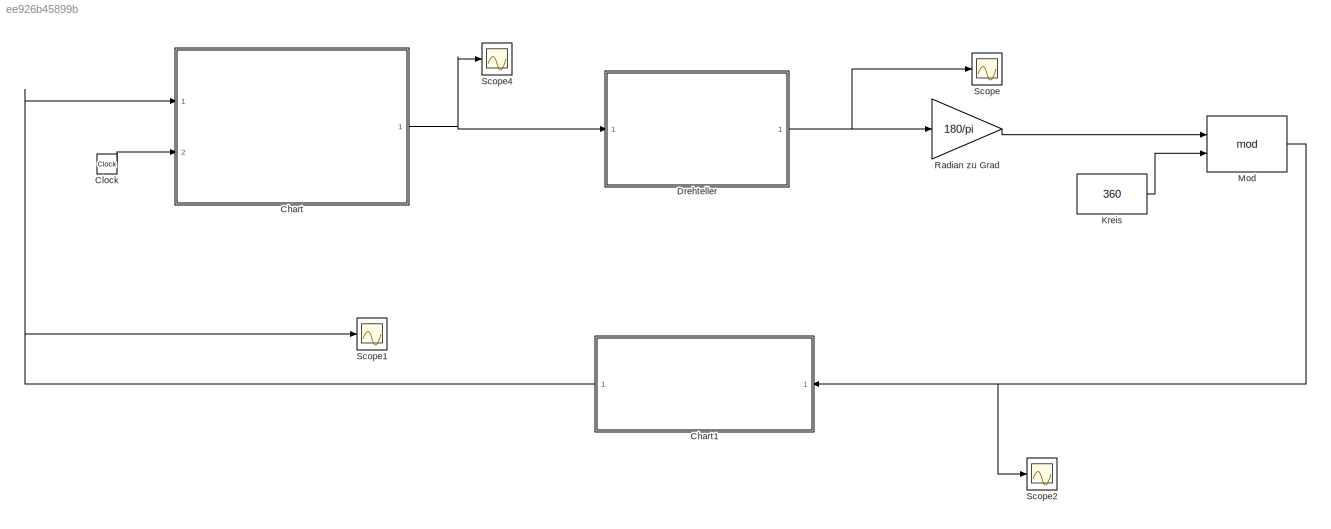
MODEL slx_ee926b45899b
KIND model
CONFIG AbsTol = auto
CONFIG EnableMultiTasking = off
CONFIG FixedStep = 0.01
CONFIG MaxStep = auto
CONFIG MinStep = auto
CONFIG RelTol = 1e-3
CONFIG SampleTimeConstraint = Unconstrained
CONFIG SolverName = ode3
CONFIG StartTime = 0.0
CONFIG StopTime = 10.0
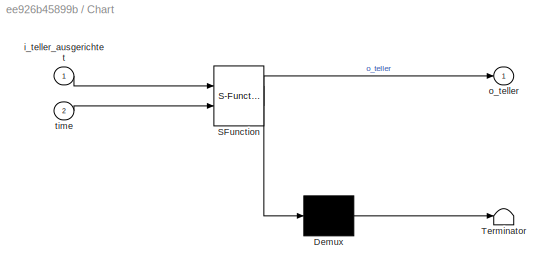
BLOCK [SubSystem] Chart
  ErrorFcn = Stateflow.Translate.translate
  PermitHierarchicalResolution = ExplicitOnly
  Ports = [2, 1]
  RequestExecContextInheritance = off
  SFBlockType = Chart
  TreatAsAtomicUnit = on
BLOCK [Demux] Chart/ Demux 
  Outputs = 1
  Ports = [1, 1]
BLOCK [S-Function] Chart/ SFunction 
  EnableBusSupport = on
  FunctionName = sf_sfun
  PortCounts = [2 2]
  Ports = [2, 2]
  SFcnIsStateOwnerBlock = off
  SFunctionDeploymentMode = off
  Tag = Stateflow S-Function 2
BLOCK [Terminator] Chart/ Terminator 
BLOCK [Inport] Chart/i_teller_ausgerichtet
BLOCK [Outport] Chart/o_teller
BLOCK [Inport] Chart/time
  Port = 2
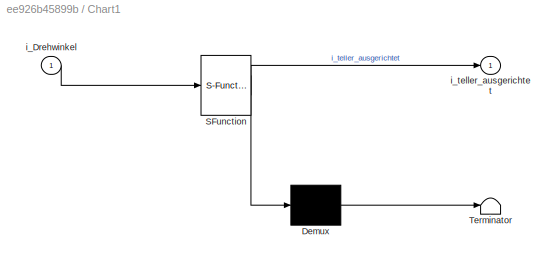
BLOCK [SubSystem] Chart1
  ErrorFcn = Stateflow.Translate.translate
  PermitHierarchicalResolution = ExplicitOnly
  Ports = [1, 1]
  RequestExecContextInheritance = off
  SFBlockType = Chart
  TreatAsAtomicUnit = on
BLOCK [Demux] Chart1/ Demux 
  Outputs = 1
  Ports = [1, 1]
BLOCK [S-Function] Chart1/ SFunction 
  EnableBusSupport = on
  FunctionName = sf_sfun
  PortCounts = [1 2]
  Ports = [1, 2]
  SFcnIsStateOwnerBlock = off
  SFunctionDeploymentMode = off
  Tag = Stateflow S-Function 1
BLOCK [Terminator] Chart1/ Terminator 
BLOCK [Inport] Chart1/i_Drehwinkel
BLOCK [Outport] Chart1/i_teller_ausgerichtet
BLOCK [Clock] Clock
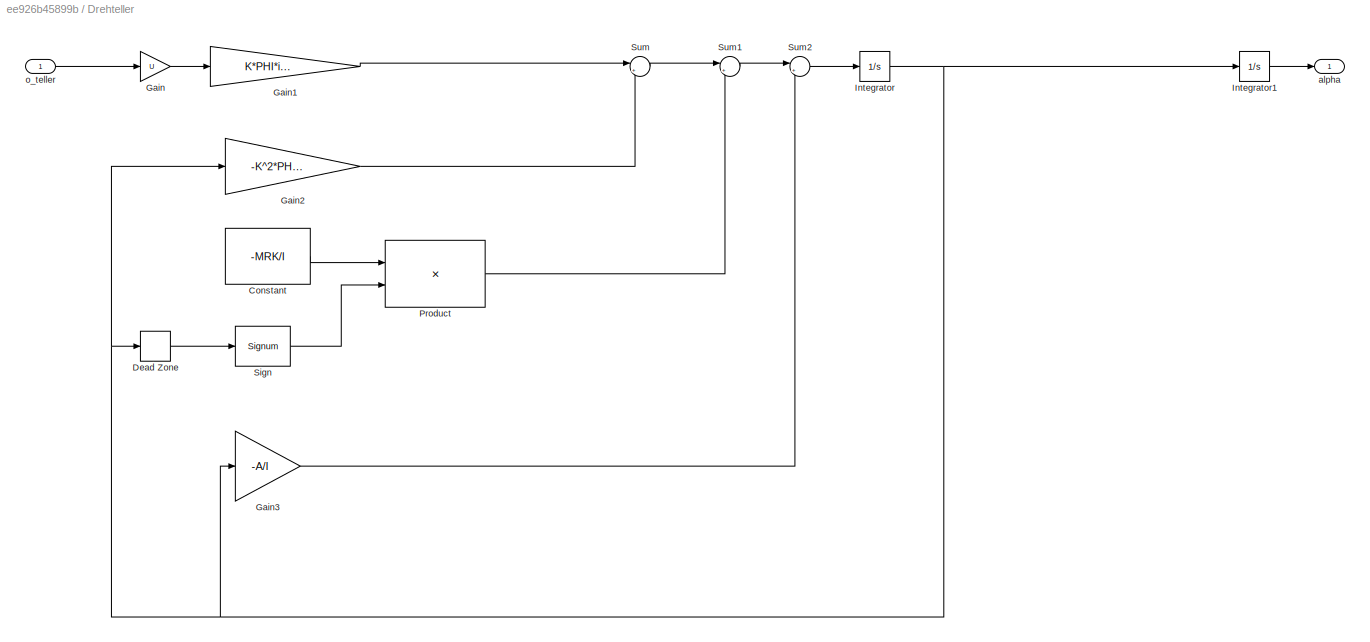
BLOCK [SubSystem] Drehteller
  Ports = [1, 1]
  RequestExecContextInheritance = off
BLOCK [Constant] Drehteller/Constant
  Value = -MRK/I
BLOCK [DeadZone] Drehteller/Dead Zone
BLOCK [Gain] Drehteller/Gain
  Gain = U
BLOCK [Gain] Drehteller/Gain1
  Gain = K*PHI*igetr/Ra/I
BLOCK [Gain] Drehteller/Gain2
  Gain = -K^2*PHI^2*igetr^2/Ra/I
BLOCK [Gain] Drehteller/Gain3
  Gain = -A/I
BLOCK [Integrator] Drehteller/Integrator
  Ports = [1, 1]
BLOCK [Integrator] Drehteller/Integrator1
  Ports = [1, 1]
BLOCK [Product] Drehteller/Product
  Ports = [2, 1]
BLOCK [Signum] Drehteller/Sign
BLOCK [Sum] Drehteller/Sum
  Inputs = |++
  NameLocation = top
  Ports = [2, 1]
BLOCK [Sum] Drehteller/Sum1
  Inputs = |++
  Ports = [2, 1]
BLOCK [Sum] Drehteller/Sum2
  Inputs = |++
  Ports = [2, 1]
BLOCK [Outport] Drehteller/alpha
  NameLocation = right
BLOCK [Inport] Drehteller/o_teller
BLOCK [Constant] Kreis
  Value = 360
BLOCK [Math] Mod
  Operator = mod
  Ports = [2, 1]
BLOCK [Gain] Radian zu Grad
  Gain = 180/pi
BLOCK [Scope] Scope
  Floating = off
  NumInputPorts = 1
  Ports = [1]
  ScopeSpecificationString = Simulink.scopes.TimeScopeBlockCfg('CurrentConfiguration', extmgr.ConfigurationSet(extmgr.Configuration('Core','General UI',true),extmgr.Configuration('Core','Source UI',true),extmgr.Configuration('Sources','WiredSimulink',true,'DataLoggingVariableName','ScopeData1'),extmgr.Configuration('Visuals','Time Domain',true,'SerializedDisplays',{struct('MinYLimReal','-0.39398','MaxYLimReal','3.54582','YLab...<+1369ch>
BLOCK [Scope] Scope1
  Floating = off
  NumInputPorts = 1
  Ports = [1]
  ScopeSpecificationString = Simulink.scopes.TimeScopeBlockCfg('CurrentConfiguration', extmgr.ConfigurationSet(extmgr.Configuration('Core','General UI',true),extmgr.Configuration('Core','Source UI',true),extmgr.Configuration('Sources','WiredSimulink',true,'DataLoggingVariableName','ScopeData2'),extmgr.Configuration('Visuals','Time Domain',true,'SerializedDisplays',{struct('MinYLimReal','-0.125','MaxYLimReal','1.125','YLabelRe...<+1429ch>
BLOCK [Scope] Scope2
  Floating = off
  NumInputPorts = 1
  Ports = [1]
  ScopeSpecificationString = Simulink.scopes.TimeScopeBlockCfg('CurrentConfiguration', extmgr.ConfigurationSet(extmgr.Configuration('Core','General UI',true),extmgr.Configuration('Core','Source UI',true),extmgr.Configuration('Sources','WiredSimulink',true),extmgr.Configuration('Visuals','Time Domain',true,'SerializedDisplays',{struct('MinYLimReal','-22.57342','MaxYLimReal','203.16074','YLabelReal','','MinYLimMag','0.00000','M...<+1409ch>
BLOCK [Scope] Scope4
  Floating = off
  NumInputPorts = 1
  Ports = [1]
  ScopeSpecificationString = Simulink.scopes.TimeScopeBlockCfg('CurrentConfiguration', extmgr.ConfigurationSet(extmgr.Configuration('Core','General UI',true),extmgr.Configuration('Core','Source UI',true),extmgr.Configuration('Sources','WiredSimulink',true,'DataLoggingVariableName','ScopeData4'),extmgr.Configuration('Visuals','Time Domain',true,'SerializedDisplays',{struct('MinYLimReal','-0.125','MaxYLimReal','1.125','YLabelRe...<+1382ch>
NET Chart1:1 -> Chart:1, Scope1:1
NET Chart:1 -> Drehteller:1, Scope4:1
LINE Clock:1 -> Chart:2
LINE Drehteller/Constant:1 -> Drehteller/Product:1
LINE Drehteller/Dead Zone:1 -> Drehteller/Sign:1
LINE Drehteller/Gain1:1 -> Drehteller/Sum:1
LINE Drehteller/Gain2:1 -> Drehteller/Sum:2
LINE Drehteller/Gain3:1 -> Drehteller/Sum2:2
LINE Drehteller/Gain:1 -> Drehteller/Gain1:1
LINE Drehteller/Integrator1:1 -> Drehteller/alpha:1
NET Drehteller/Integrator:1 -> Drehteller/Dead Zone:1, Drehteller/Gain2:1, Drehteller/Gain3:1, Drehteller/Integrator1:1
LINE Drehteller/Product:1 -> Drehteller/Sum1:2
LINE Drehteller/Sign:1 -> Drehteller/Product:2
LINE Drehteller/Sum1:1 -> Drehteller/Sum2:1
LINE Drehteller/Sum2:1 -> Drehteller/Integrator:1
LINE Drehteller/Sum:1 -> Drehteller/Sum1:1
LINE Drehteller/o_teller:1 -> Drehteller/Gain:1
NET Drehteller:1 -> Radian zu Grad:1, Scope:1
LINE Kreis:1 -> Mod:2
NET Mod:1 -> Chart1:1, Scope2:1
LINE Radian zu Grad:1 -> Mod:1
note: NET lines group one-source signal fan-out (src -> all destinations, sorted); 1:1 wires keep LINE
CHART Chart1 states=3 transitions=5
  STATE_LABEL 'start\n'
  STATE_LABEL 'Ausgerichtet\ni_teller_ausgerichtet = 1;'
  STATE_LABEL 'nichtAusgerichtet\ni_teller_ausgerichtet = 0;'
CHART Chart states=4 transitions=5
  STATE_LABEL 'Anfangszustand\no_teller = 0;\n'
  STATE_LABEL 'Wartenzustand\no_teller = 0;'
  STATE_LABEL 'Drehzustand\no_teller = 1;'
  STATE_LABEL 'Warten_i_teller_ausgerichtet '
CHART  states=0 transitions=0
CHART  states=0 transitions=0
